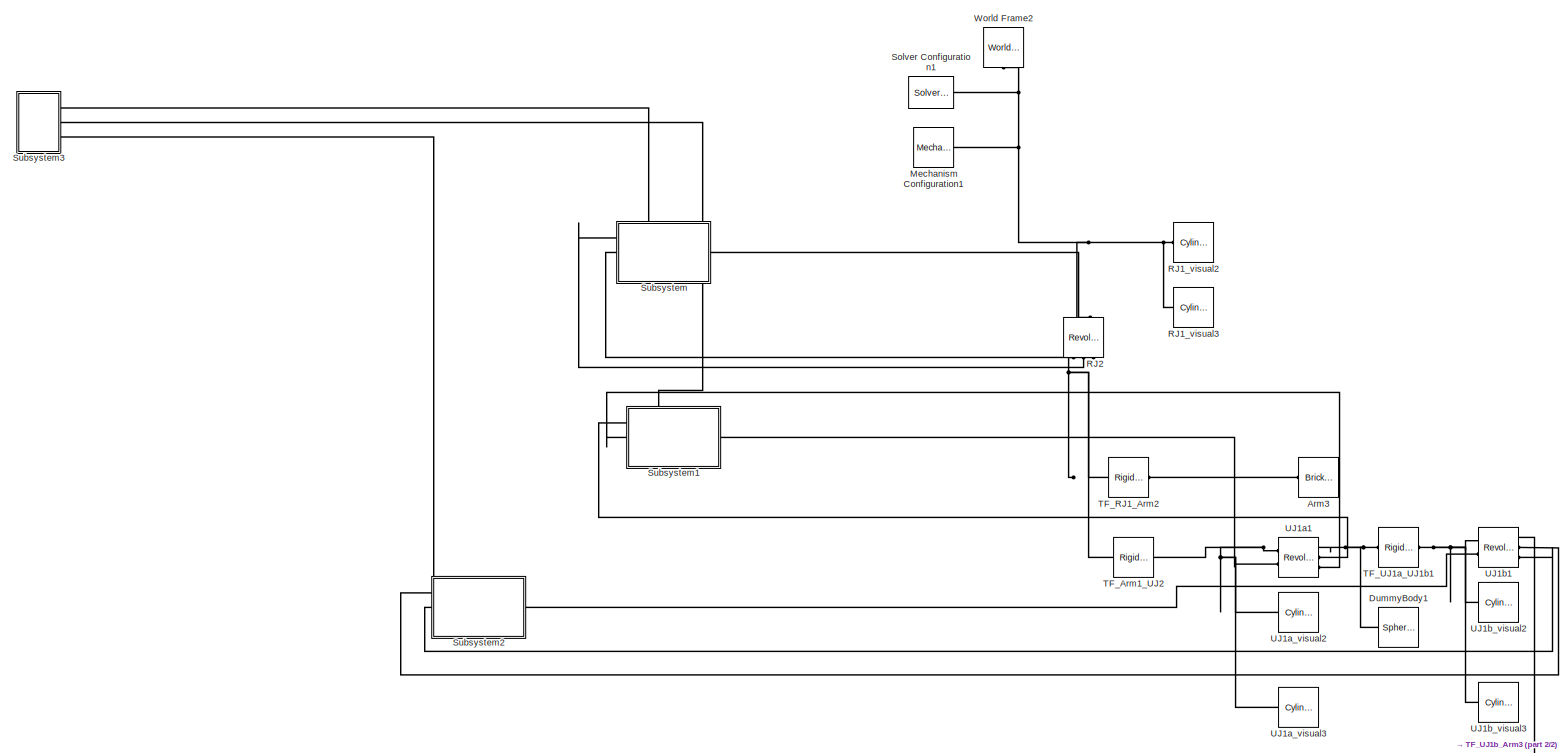
[diagram: root canvas - part 1/2, most of the canvas]
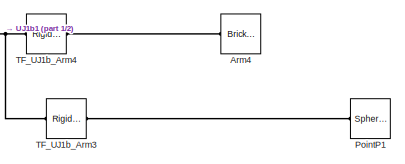
[diagram: root canvas - part 2/2, bottom right region]
MODEL slx_aede37786c12
KIND model
CONFIG AbsTol = auto
CONFIG EnableMultiTasking = off
CONFIG FixedStep = auto
CONFIG MaxStep = 1e-3
CONFIG MinStep = auto
CONFIG RelTol = 1e-3
CONFIG SampleTimeConstraint = Unconstrained
CONFIG SolverName = VariableStepAuto
CONFIG StartTime = 0.0
CONFIG StopTime = 10
WORKSPACE source: MATLAB code (in-file)
WORKSPACE g = 9.81
WORKSPACE m1 = 8
WORKSPACE L1 = 0.2
WORKSPACE w1 = 0.04
WORKSPACE m2 = 12
WORKSPACE L2 = 0.6
WORKSPACE w2 = 0.03
WORKSPACE theta1_init = 0*pi/180  (= 0)
WORKSPACE thetaDot1_init = 0
WORKSPACE theta2_init = 0*pi/180  (= 0)
WORKSPACE thetaDot2_init = 0
WORKSPACE theta3_init = 70*pi/180  (= 1.2217304764)
WORKSPACE thetaDot3_init = 0
WORKSPACE I_max = 16
WORKSPACE Km = 1
WORKSPACE Jm = 0.002
WORKSPACE g_ratio = 50
BLOCK [Reference] Arm3  REF=sm_lib/Body Elements/Brick Solid
  Ports = [0, 0, 0, 0, 0, 0, 1]
  SourceBlock = sm_lib/Body Elements/Brick Solid
  SourceProductBaseCode = MS
  SourceType = Brick Solid
BLOCK [Reference] Arm4  REF=sm_lib/Body Elements/Brick Solid
  Ports = [0, 0, 0, 0, 0, 0, 1]
  SourceBlock = sm_lib/Body Elements/Brick Solid
  SourceProductBaseCode = MS
  SourceType = Brick Solid
BLOCK [Reference] DummyBody1  REF=sm_lib/Body Elements/Spherical Solid
  Ports = [0, 0, 0, 0, 0, 0, 1]
  SourceBlock = sm_lib/Body Elements/Spherical Solid
  SourceProductBaseCode = MS
  SourceType = Spherical Solid
BLOCK [Reference] Mechanism Configuration1  REF=sm_lib/Utilities/Mechanism
Configuration
  Ports = [0, 0, 0, 0, 0, 0, 1]
  SourceBlock = sm_lib/Utilities/Mechanism\nConfiguration
  SourceProductBaseCode = MS
  SourceType = Mechanism\nConfiguration
BLOCK [Reference] PointP1  REF=sm_lib/Body Elements/Spherical Solid
  Ports = [0, 0, 0, 0, 0, 0, 1]
  SourceBlock = sm_lib/Body Elements/Spherical Solid
  SourceProductBaseCode = MS
  SourceType = Spherical Solid
BLOCK [Reference] RJ1_visual2  REF=sm_lib/Body Elements/Cylindrical Solid
  Ports = [0, 0, 0, 0, 0, 0, 1]
  SourceBlock = sm_lib/Body Elements/Cylindrical Solid
  SourceProductBaseCode = MS
  SourceType = Cylindrical Solid
BLOCK [Reference] RJ1_visual3  REF=sm_lib/Body Elements/Cylindrical Solid
  Ports = [0, 0, 0, 0, 0, 0, 1]
  SourceBlock = sm_lib/Body Elements/Cylindrical Solid
  SourceProductBaseCode = MS
  SourceType = Cylindrical Solid
BLOCK [Reference] RJ2  REF=sm_lib/Joints/Revolute Joint
  NameLocation = right
  Ports = [0, 0, 0, 0, 0, 2, 3]
  SourceBlock = sm_lib/Joints/Revolute Joint
  SourceProductBaseCode = MS
  SourceType = Revolute Joint
BLOCK [Reference] Solver Configuration1  REF=nesl_utility/Solver
Configuration
  Ports = [0, 0, 0, 0, 0, 0, 1]
  SourceBlock = nesl_utility/Solver\nConfiguration
  SourceProductBaseCode = SS,PW,VE
  SourceType = Solver\nConfiguration
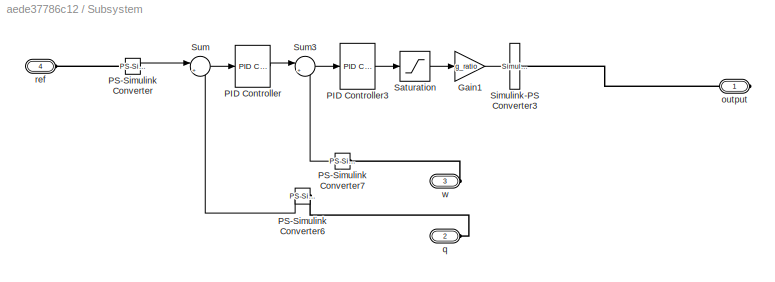
BLOCK [SubSystem] Subsystem
  PortSchema = {"entries":[{"content":{"sides":[{"content":{"connectorIds":["LConn1","LConn2"]},"type":"ConnectorPlacement.EquallySpacedRectSide","uuid":"88fb2923-d567-49e7-965d-54b8b92ddc6d"},{"content":{"connectorIds":["RConn1"],"side":"RIGHT"},"type":"ConnectorPlacement.EquallySpacedRectSide","uuid":"46ea93fe-e994-4ece-a41c-2bcb9003d689"},{"content":{"connectorIds":["LConn3"],"side":"TOP"},"type":"ConnectorPl...<+262ch>  <repeated x3 — deduplicated; at blocks: Subsystem, Subsystem1, Subsystem2>
  Ports = [0, 0, 0, 0, 0, 3, 1]
  RequestExecContextInheritance = off
BLOCK [Gain] Subsystem/Gain1
  Gain = g_ratio
BLOCK [Reference] Subsystem/PID Controller  REF=slpidlib/PID Controller
  Ports = [1, 1]
  SourceBlock = slpidlib/PID Controller
  SourceProductBaseCode = SL
  SourceType = PID 1dof
BLOCK [Reference] Subsystem/PID Controller3  REF=slpidlib/PID Controller
  Ports = [1, 1]
  SourceBlock = slpidlib/PID Controller
  SourceProductBaseCode = SL
  SourceType = PID 1dof
BLOCK [Reference] Subsystem/PS-Simulink Converter  REF=nesl_utility/PS-Simulink
Converter
  Ports = [0, 1, 0, 0, 0, 1]
  SourceBlock = nesl_utility/PS-Simulink\nConverter
  SourceProductBaseCode = SS,PW,VE
  SourceType = PS-Simulink\nConverter
BLOCK [Reference] Subsystem/PS-Simulink Converter6  REF=nesl_utility/PS-Simulink
Converter
  NameLocation = top
  Ports = [0, 1, 0, 0, 0, 1]
  SourceBlock = nesl_utility/PS-Simulink\nConverter
  SourceProductBaseCode = SS,PW,VE
  SourceType = PS-Simulink\nConverter
BLOCK [Reference] Subsystem/PS-Simulink Converter7  REF=nesl_utility/PS-Simulink
Converter
  NameLocation = top
  Ports = [0, 1, 0, 0, 0, 1]
  SourceBlock = nesl_utility/PS-Simulink\nConverter
  SourceProductBaseCode = SS,PW,VE
  SourceType = PS-Simulink\nConverter
BLOCK [Saturate] Subsystem/Saturation
  LowerLimit = -I_max*Km
  UpperLimit = I_max*Km
  ZeroCross = off
BLOCK [Reference] Subsystem/Simulink-PS Converter3  REF=nesl_utility/Simulink-PS
Converter
  Ports = [1, 0, 0, 0, 0, 0, 1]
  SourceBlock = nesl_utility/Simulink-PS\nConverter
  SourceProductBaseCode = SS,PW,VE
  SourceType = Simulink-PS\nConverter
BLOCK [Sum] Subsystem/Sum
  Inputs = |+-
  Ports = [2, 1]
BLOCK [Sum] Subsystem/Sum3
  Inputs = |+-
  Ports = [2, 1]
BLOCK [PMIOPort] Subsystem/output
  Side = Right
BLOCK [PMIOPort] Subsystem/q
  Port = 2
  Side = Left
BLOCK [PMIOPort] Subsystem/ref
  Port = 4
  Side = Left
BLOCK [PMIOPort] Subsystem/w
  Port = 3
  Side = Left
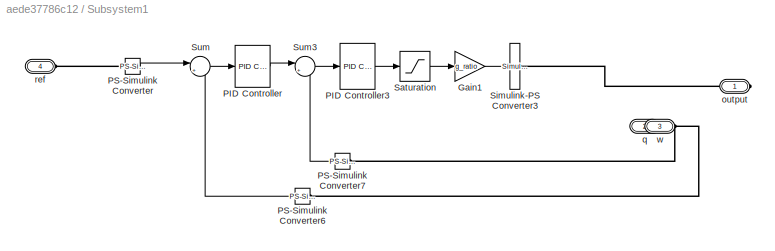
BLOCK [SubSystem] Subsystem1
  Ports = [0, 0, 0, 0, 0, 3, 1]
  RequestExecContextInheritance = off
BLOCK [Gain] Subsystem1/Gain1
  Gain = g_ratio
BLOCK [Reference] Subsystem1/PID Controller  REF=slpidlib/PID Controller
  Ports = [1, 1]
  SourceBlock = slpidlib/PID Controller
  SourceProductBaseCode = SL
  SourceType = PID 1dof
BLOCK [Reference] Subsystem1/PID Controller3  REF=slpidlib/PID Controller
  Ports = [1, 1]
  SourceBlock = slpidlib/PID Controller
  SourceProductBaseCode = SL
  SourceType = PID 1dof
BLOCK [Reference] Subsystem1/PS-Simulink Converter  REF=nesl_utility/PS-Simulink
Converter
  Ports = [0, 1, 0, 0, 0, 1]
  SourceBlock = nesl_utility/PS-Simulink\nConverter
  SourceProductBaseCode = SS,PW,VE
  SourceType = PS-Simulink\nConverter
BLOCK [Reference] Subsystem1/PS-Simulink Converter6  REF=nesl_utility/PS-Simulink
Converter
  NameLocation = top
  Ports = [0, 1, 0, 0, 0, 1]
  SourceBlock = nesl_utility/PS-Simulink\nConverter
  SourceProductBaseCode = SS,PW,VE
  SourceType = PS-Simulink\nConverter
BLOCK [Reference] Subsystem1/PS-Simulink Converter7  REF=nesl_utility/PS-Simulink
Converter
  NameLocation = top
  Ports = [0, 1, 0, 0, 0, 1]
  SourceBlock = nesl_utility/PS-Simulink\nConverter
  SourceProductBaseCode = SS,PW,VE
  SourceType = PS-Simulink\nConverter
BLOCK [Saturate] Subsystem1/Saturation
  LowerLimit = -I_max*Km
  UpperLimit = I_max*Km
  ZeroCross = off
BLOCK [Reference] Subsystem1/Simulink-PS Converter3  REF=nesl_utility/Simulink-PS
Converter
  Ports = [1, 0, 0, 0, 0, 0, 1]
  SourceBlock = nesl_utility/Simulink-PS\nConverter
  SourceProductBaseCode = SS,PW,VE
  SourceType = Simulink-PS\nConverter
BLOCK [Sum] Subsystem1/Sum
  Inputs = |+-
  Ports = [2, 1]
BLOCK [Sum] Subsystem1/Sum3
  Inputs = |+-
  Ports = [2, 1]
BLOCK [PMIOPort] Subsystem1/output
  Side = Right
BLOCK [PMIOPort] Subsystem1/q
  Port = 2
  Side = Left
BLOCK [PMIOPort] Subsystem1/ref
  Port = 4
  Side = Left
BLOCK [PMIOPort] Subsystem1/w
  Port = 3
  Side = Left
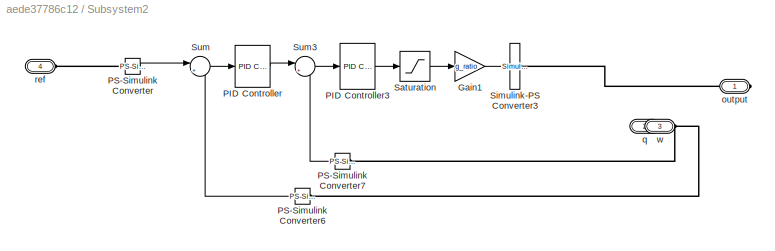
BLOCK [SubSystem] Subsystem2
  Ports = [0, 0, 0, 0, 0, 3, 1]
  RequestExecContextInheritance = off
BLOCK [Gain] Subsystem2/Gain1
  Gain = g_ratio
BLOCK [Reference] Subsystem2/PID Controller  REF=slpidlib/PID Controller
  Ports = [1, 1]
  SourceBlock = slpidlib/PID Controller
  SourceProductBaseCode = SL
  SourceType = PID 1dof
BLOCK [Reference] Subsystem2/PID Controller3  REF=slpidlib/PID Controller
  Ports = [1, 1]
  SourceBlock = slpidlib/PID Controller
  SourceProductBaseCode = SL
  SourceType = PID 1dof
BLOCK [Reference] Subsystem2/PS-Simulink Converter  REF=nesl_utility/PS-Simulink
Converter
  Ports = [0, 1, 0, 0, 0, 1]
  SourceBlock = nesl_utility/PS-Simulink\nConverter
  SourceProductBaseCode = SS,PW,VE
  SourceType = PS-Simulink\nConverter
BLOCK [Reference] Subsystem2/PS-Simulink Converter6  REF=nesl_utility/PS-Simulink
Converter
  NameLocation = top
  Ports = [0, 1, 0, 0, 0, 1]
  SourceBlock = nesl_utility/PS-Simulink\nConverter
  SourceProductBaseCode = SS,PW,VE
  SourceType = PS-Simulink\nConverter
BLOCK [Reference] Subsystem2/PS-Simulink Converter7  REF=nesl_utility/PS-Simulink
Converter
  NameLocation = top
  Ports = [0, 1, 0, 0, 0, 1]
  SourceBlock = nesl_utility/PS-Simulink\nConverter
  SourceProductBaseCode = SS,PW,VE
  SourceType = PS-Simulink\nConverter
BLOCK [Saturate] Subsystem2/Saturation
  LowerLimit = -I_max*Km
  UpperLimit = I_max*Km
  ZeroCross = off
BLOCK [Reference] Subsystem2/Simulink-PS Converter3  REF=nesl_utility/Simulink-PS
Converter
  Ports = [1, 0, 0, 0, 0, 0, 1]
  SourceBlock = nesl_utility/Simulink-PS\nConverter
  SourceProductBaseCode = SS,PW,VE
  SourceType = Simulink-PS\nConverter
BLOCK [Sum] Subsystem2/Sum
  Inputs = |+-
  Ports = [2, 1]
BLOCK [Sum] Subsystem2/Sum3
  Inputs = |+-
  Ports = [2, 1]
BLOCK [PMIOPort] Subsystem2/output
  Side = Right
BLOCK [PMIOPort] Subsystem2/q
  Port = 2
  Side = Left
BLOCK [PMIOPort] Subsystem2/ref
  Port = 4
  Side = Left
BLOCK [PMIOPort] Subsystem2/w
  Port = 3
  Side = Left
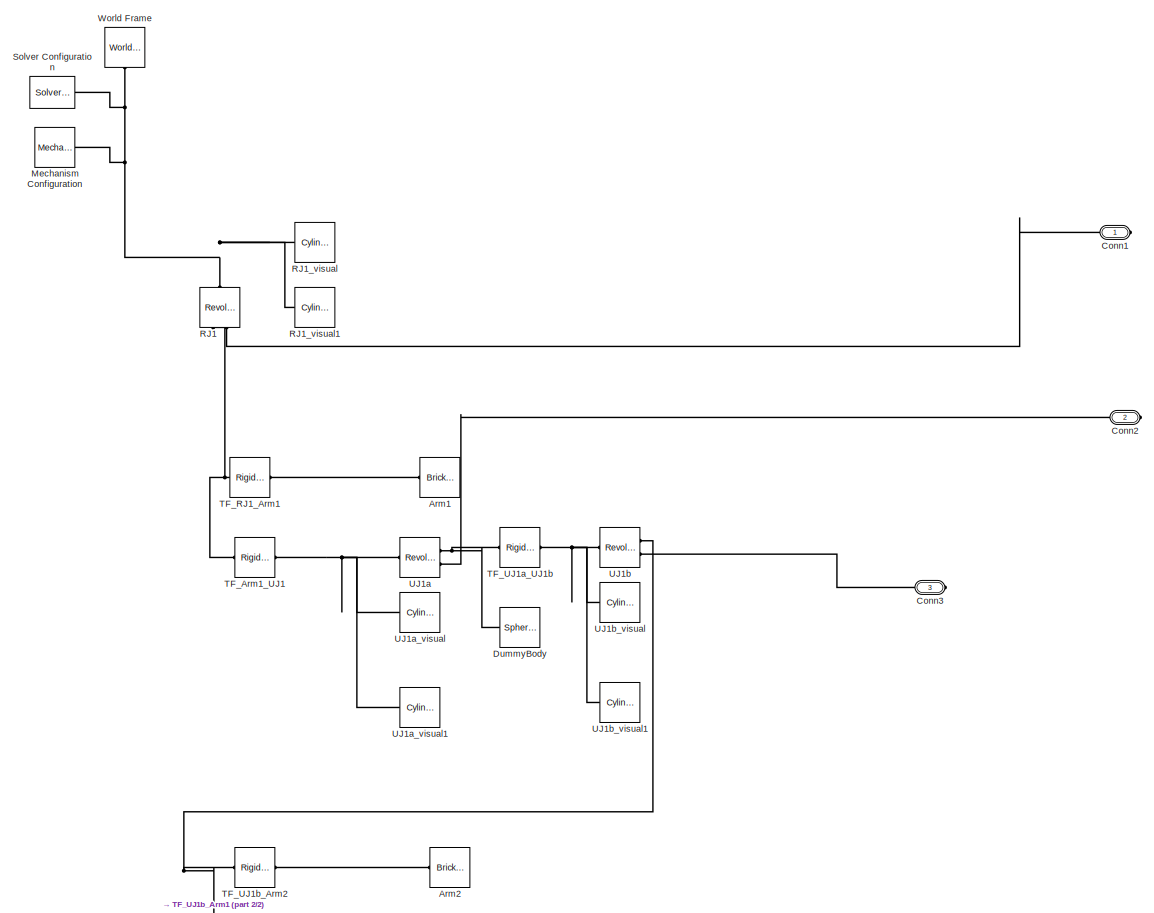
[diagram: Subsystem3 - part 1/2, full width, middle band]
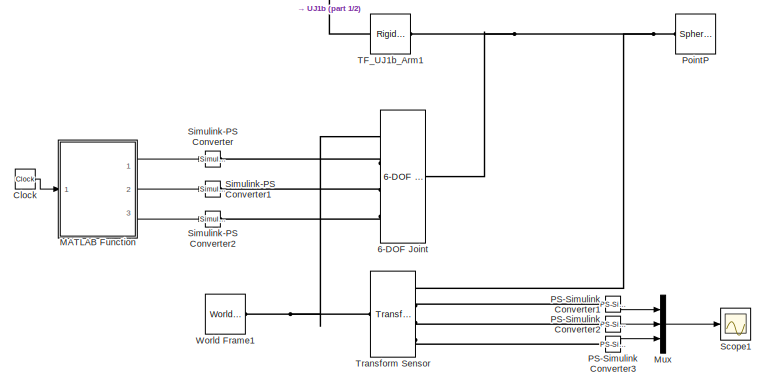
[diagram: Subsystem3 - part 2/2, bottom left region]
BLOCK [SubSystem] Subsystem3
  Ports = [0, 0, 0, 0, 0, 0, 3]
  RequestExecContextInheritance = off
BLOCK [Reference] Subsystem3/6-DOF Joint  REF=sm_lib/Joints/6-DOF Joint
  Ports = [0, 0, 0, 0, 0, 4, 1]
  SourceBlock = sm_lib/Joints/6-DOF Joint
  SourceProductBaseCode = MS
  SourceType = 6-DOF Joint
BLOCK [Reference] Subsystem3/Arm1  REF=sm_lib/Body Elements/Brick Solid
  Ports = [0, 0, 0, 0, 0, 0, 1]
  SourceBlock = sm_lib/Body Elements/Brick Solid
  SourceProductBaseCode = MS
  SourceType = Brick Solid
BLOCK [Reference] Subsystem3/Arm2  REF=sm_lib/Body Elements/Brick Solid
  Ports = [0, 0, 0, 0, 0, 0, 1]
  SourceBlock = sm_lib/Body Elements/Brick Solid
  SourceProductBaseCode = MS
  SourceType = Brick Solid
BLOCK [Clock] Subsystem3/Clock
BLOCK [PMIOPort] Subsystem3/Conn1
  Side = Right
BLOCK [PMIOPort] Subsystem3/Conn2
  Port = 2
  Side = Right
BLOCK [PMIOPort] Subsystem3/Conn3
  Port = 3
  Side = Right
BLOCK [Reference] Subsystem3/DummyBody  REF=sm_lib/Body Elements/Spherical Solid
  Ports = [0, 0, 0, 0, 0, 0, 1]
  SourceBlock = sm_lib/Body Elements/Spherical Solid
  SourceProductBaseCode = MS
  SourceType = Spherical Solid
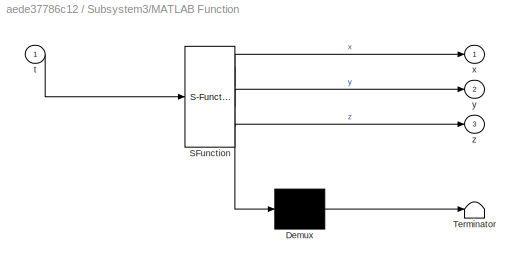
BLOCK [SubSystem] Subsystem3/MATLAB Function
  ErrorFcn = Stateflow.Translate.translate
  PermitHierarchicalResolution = ExplicitOnly
  Ports = [1, 3]
  RequestExecContextInheritance = off
  SFBlockType = MATLAB Function
  TreatAsAtomicUnit = on
BLOCK [Demux] Subsystem3/MATLAB Function/ Demux 
  Outputs = 1
  Ports = [1, 1]
BLOCK [S-Function] Subsystem3/MATLAB Function/ SFunction 
  EnableBusSupport = on
  FunctionName = sf_sfun
  PortCounts = [1 4]
  Ports = [1, 4]
  SFcnIsStateOwnerBlock = off
  SFunctionDeploymentMode = off
  Tag = Stateflow S-Function 2
BLOCK [Terminator] Subsystem3/MATLAB Function/ Terminator 
BLOCK [Inport] Subsystem3/MATLAB Function/t
BLOCK [Outport] Subsystem3/MATLAB Function/x
  VectorParamsAs1DForOutWhenUnconnected = off
BLOCK [Outport] Subsystem3/MATLAB Function/y
  Port = 2
  VectorParamsAs1DForOutWhenUnconnected = off
BLOCK [Outport] Subsystem3/MATLAB Function/z
  Port = 3
  VectorParamsAs1DForOutWhenUnconnected = off
BLOCK [Reference] Subsystem3/Mechanism Configuration  REF=sm_lib/Utilities/Mechanism
Configuration
  Ports = [0, 0, 0, 0, 0, 0, 1]
  SourceBlock = sm_lib/Utilities/Mechanism\nConfiguration
  SourceProductBaseCode = MS
  SourceType = Mechanism\nConfiguration
BLOCK [Mux] Subsystem3/Mux
  DisplayOption = bar
  Inputs = 3
  Ports = [3, 1]
BLOCK [Reference] Subsystem3/PS-Simulink Converter1  REF=nesl_utility/PS-Simulink
Converter
  Ports = [0, 1, 0, 0, 0, 1]
  SourceBlock = nesl_utility/PS-Simulink\nConverter
  SourceProductBaseCode = SS,PW,VE
  SourceType = PS-Simulink\nConverter
BLOCK [Reference] Subsystem3/PS-Simulink Converter2  REF=nesl_utility/PS-Simulink
Converter
  Ports = [0, 1, 0, 0, 0, 1]
  SourceBlock = nesl_utility/PS-Simulink\nConverter
  SourceProductBaseCode = SS,PW,VE
  SourceType = PS-Simulink\nConverter
BLOCK [Reference] Subsystem3/PS-Simulink Converter3  REF=nesl_utility/PS-Simulink
Converter
  Ports = [0, 1, 0, 0, 0, 1]
  SourceBlock = nesl_utility/PS-Simulink\nConverter
  SourceProductBaseCode = SS,PW,VE
  SourceType = PS-Simulink\nConverter
BLOCK [Reference] Subsystem3/PointP  REF=sm_lib/Body Elements/Spherical Solid
  Ports = [0, 0, 0, 0, 0, 0, 1]
  SourceBlock = sm_lib/Body Elements/Spherical Solid
  SourceProductBaseCode = MS
  SourceType = Spherical Solid
BLOCK [Reference] Subsystem3/RJ1  REF=sm_lib/Joints/Revolute Joint
  NameLocation = right
  Ports = [0, 0, 0, 0, 0, 1, 2]
  SourceBlock = sm_lib/Joints/Revolute Joint
  SourceProductBaseCode = MS
  SourceType = Revolute Joint
BLOCK [Reference] Subsystem3/RJ1_visual  REF=sm_lib/Body Elements/Cylindrical Solid
  Ports = [0, 0, 0, 0, 0, 0, 1]
  SourceBlock = sm_lib/Body Elements/Cylindrical Solid
  SourceProductBaseCode = MS
  SourceType = Cylindrical Solid
BLOCK [Reference] Subsystem3/RJ1_visual1  REF=sm_lib/Body Elements/Cylindrical Solid
  Ports = [0, 0, 0, 0, 0, 0, 1]
  SourceBlock = sm_lib/Body Elements/Cylindrical Solid
  SourceProductBaseCode = MS
  SourceType = Cylindrical Solid
BLOCK [Scope] Subsystem3/Scope1
  Floating = off
  NumInputPorts = 1
  Ports = [1]
  ScopeSpecificationString = Simulink.scopes.TimeScopeBlockCfg('CurrentConfiguration', extmgr.ConfigurationSet(extmgr.Configuration('Core','General UI',true),extmgr.Configuration('Core','Source UI',true),extmgr.Configuration('Sources','WiredSimulink',true,'DataLoggingVariableName','ScopeData1'),extmgr.Configuration('Visuals','Time Domain',true,'SerializedDisplays',{struct('MinYLimReal','-0.34312','MaxYLimReal','0.53812','YLab...<+1464ch>
BLOCK [Reference] Subsystem3/Simulink-PS Converter  REF=nesl_utility/Simulink-PS
Converter
  Ports = [1, 0, 0, 0, 0, 0, 1]
  SourceBlock = nesl_utility/Simulink-PS\nConverter
  SourceProductBaseCode = SS,PW,VE
  SourceType = Simulink-PS\nConverter
BLOCK [Reference] Subsystem3/Simulink-PS Converter1  REF=nesl_utility/Simulink-PS
Converter
  Ports = [1, 0, 0, 0, 0, 0, 1]
  SourceBlock = nesl_utility/Simulink-PS\nConverter
  SourceProductBaseCode = SS,PW,VE
  SourceType = Simulink-PS\nConverter
BLOCK [Reference] Subsystem3/Simulink-PS Converter2  REF=nesl_utility/Simulink-PS
Converter
  Ports = [1, 0, 0, 0, 0, 0, 1]
  SourceBlock = nesl_utility/Simulink-PS\nConverter
  SourceProductBaseCode = SS,PW,VE
  SourceType = Simulink-PS\nConverter
BLOCK [Reference] Subsystem3/Solver Configuration  REF=nesl_utility/Solver
Configuration
  Ports = [0, 0, 0, 0, 0, 0, 1]
  SourceBlock = nesl_utility/Solver\nConfiguration
  SourceProductBaseCode = SS,PW,VE
  SourceType = Solver\nConfiguration
BLOCK [Reference] Subsystem3/TF_Arm1_UJ1  REF=sm_lib/Frames and
Transforms/Rigid
Transform
  Ports = [0, 0, 0, 0, 0, 1, 1]
  SourceBlock = sm_lib/Frames and\nTransforms/Rigid\nTransform
  SourceProductBaseCode = MS
  SourceType = Rigid\nTransform
BLOCK [Reference] Subsystem3/TF_RJ1_Arm1  REF=sm_lib/Frames and
Transforms/Rigid
Transform
  Ports = [0, 0, 0, 0, 0, 1, 1]
  SourceBlock = sm_lib/Frames and\nTransforms/Rigid\nTransform
  SourceProductBaseCode = MS
  SourceType = Rigid\nTransform
BLOCK [Reference] Subsystem3/TF_UJ1a_UJ1b  REF=sm_lib/Frames and
Transforms/Rigid
Transform
  Ports = [0, 0, 0, 0, 0, 1, 1]
  SourceBlock = sm_lib/Frames and\nTransforms/Rigid\nTransform
  SourceProductBaseCode = MS
  SourceType = Rigid\nTransform
BLOCK [Reference] Subsystem3/TF_UJ1b_Arm1  REF=sm_lib/Frames and
Transforms/Rigid
Transform
  Ports = [0, 0, 0, 0, 0, 1, 1]
  SourceBlock = sm_lib/Frames and\nTransforms/Rigid\nTransform
  SourceProductBaseCode = MS
  SourceType = Rigid\nTransform
BLOCK [Reference] Subsystem3/TF_UJ1b_Arm2  REF=sm_lib/Frames and
Transforms/Rigid
Transform
  Ports = [0, 0, 0, 0, 0, 1, 1]
  SourceBlock = sm_lib/Frames and\nTransforms/Rigid\nTransform
  SourceProductBaseCode = MS
  SourceType = Rigid\nTransform
BLOCK [Reference] Subsystem3/Transform Sensor  REF=sm_lib/Frames and
Transforms/Transform
Sensor
  Ports = [0, 0, 0, 0, 0, 1, 4]
  SourceBlock = sm_lib/Frames and\nTransforms/Transform\nSensor
  SourceProductBaseCode = MS
  SourceType = Transform\nSensor
BLOCK [Reference] Subsystem3/UJ1a  REF=sm_lib/Joints/Revolute Joint
  NameLocation = top
  Ports = [0, 0, 0, 0, 0, 1, 2]
  SourceBlock = sm_lib/Joints/Revolute Joint
  SourceProductBaseCode = MS
  SourceType = Revolute Joint
BLOCK [Reference] Subsystem3/UJ1a_visual  REF=sm_lib/Body Elements/Cylindrical Solid
  Ports = [0, 0, 0, 0, 0, 0, 1]
  SourceBlock = sm_lib/Body Elements/Cylindrical Solid
  SourceProductBaseCode = MS
  SourceType = Cylindrical Solid
BLOCK [Reference] Subsystem3/UJ1a_visual1  REF=sm_lib/Body Elements/Cylindrical Solid
  Ports = [0, 0, 0, 0, 0, 0, 1]
  SourceBlock = sm_lib/Body Elements/Cylindrical Solid
  SourceProductBaseCode = MS
  SourceType = Cylindrical Solid
BLOCK [Reference] Subsystem3/UJ1b  REF=sm_lib/Joints/Revolute Joint
  NameLocation = top
  Ports = [0, 0, 0, 0, 0, 1, 2]
  SourceBlock = sm_lib/Joints/Revolute Joint
  SourceProductBaseCode = MS
  SourceType = Revolute Joint
BLOCK [Reference] Subsystem3/UJ1b_visual  REF=sm_lib/Body Elements/Cylindrical Solid
  Ports = [0, 0, 0, 0, 0, 0, 1]
  SourceBlock = sm_lib/Body Elements/Cylindrical Solid
  SourceProductBaseCode = MS
  SourceType = Cylindrical Solid
BLOCK [Reference] Subsystem3/UJ1b_visual1  REF=sm_lib/Body Elements/Cylindrical Solid
  Ports = [0, 0, 0, 0, 0, 0, 1]
  SourceBlock = sm_lib/Body Elements/Cylindrical Solid
  SourceProductBaseCode = MS
  SourceType = Cylindrical Solid
BLOCK [Reference] Subsystem3/World Frame  REF=sm_lib/Frames and
Transforms/World Frame
  NameLocation = right
  Ports = [0, 0, 0, 0, 0, 0, 1]
  SourceBlock = sm_lib/Frames and\nTransforms/World Frame
  SourceProductBaseCode = MS
  SourceType = World Frame
BLOCK [Reference] Subsystem3/World Frame1  REF=sm_lib/Frames and
Transforms/World Frame
  Ports = [0, 0, 0, 0, 0, 0, 1]
  SourceBlock = sm_lib/Frames and\nTransforms/World Frame
  SourceProductBaseCode = MS
  SourceType = World Frame
BLOCK [Reference] TF_Arm1_UJ2  REF=sm_lib/Frames and
Transforms/Rigid
Transform
  Ports = [0, 0, 0, 0, 0, 1, 1]
  SourceBlock = sm_lib/Frames and\nTransforms/Rigid\nTransform
  SourceProductBaseCode = MS
  SourceType = Rigid\nTransform
BLOCK [Reference] TF_RJ1_Arm2  REF=sm_lib/Frames and
Transforms/Rigid
Transform
  Ports = [0, 0, 0, 0, 0, 1, 1]
  SourceBlock = sm_lib/Frames and\nTransforms/Rigid\nTransform
  SourceProductBaseCode = MS
  SourceType = Rigid\nTransform
BLOCK [Reference] TF_UJ1a_UJ1b1  REF=sm_lib/Frames and
Transforms/Rigid
Transform
  Ports = [0, 0, 0, 0, 0, 1, 1]
  SourceBlock = sm_lib/Frames and\nTransforms/Rigid\nTransform
  SourceProductBaseCode = MS
  SourceType = Rigid\nTransform
BLOCK [Reference] TF_UJ1b_Arm3  REF=sm_lib/Frames and
Transforms/Rigid
Transform
  Ports = [0, 0, 0, 0, 0, 1, 1]
  SourceBlock = sm_lib/Frames and\nTransforms/Rigid\nTransform
  SourceProductBaseCode = MS
  SourceType = Rigid\nTransform
BLOCK [Reference] TF_UJ1b_Arm4  REF=sm_lib/Frames and
Transforms/Rigid
Transform
  Ports = [0, 0, 0, 0, 0, 1, 1]
  SourceBlock = sm_lib/Frames and\nTransforms/Rigid\nTransform
  SourceProductBaseCode = MS
  SourceType = Rigid\nTransform
BLOCK [Reference] UJ1a1  REF=sm_lib/Joints/Revolute Joint
  NameLocation = top
  Ports = [0, 0, 0, 0, 0, 2, 3]
  SourceBlock = sm_lib/Joints/Revolute Joint
  SourceProductBaseCode = MS
  SourceType = Revolute Joint
BLOCK [Reference] UJ1a_visual2  REF=sm_lib/Body Elements/Cylindrical Solid
  Ports = [0, 0, 0, 0, 0, 0, 1]
  SourceBlock = sm_lib/Body Elements/Cylindrical Solid
  SourceProductBaseCode = MS
  SourceType = Cylindrical Solid
BLOCK [Reference] UJ1a_visual3  REF=sm_lib/Body Elements/Cylindrical Solid
  Ports = [0, 0, 0, 0, 0, 0, 1]
  SourceBlock = sm_lib/Body Elements/Cylindrical Solid
  SourceProductBaseCode = MS
  SourceType = Cylindrical Solid
BLOCK [Reference] UJ1b1  REF=sm_lib/Joints/Revolute Joint
  NameLocation = top
  Ports = [0, 0, 0, 0, 0, 2, 3]
  SourceBlock = sm_lib/Joints/Revolute Joint
  SourceProductBaseCode = MS
  SourceType = Revolute Joint
BLOCK [Reference] UJ1b_visual2  REF=sm_lib/Body Elements/Cylindrical Solid
  Ports = [0, 0, 0, 0, 0, 0, 1]
  SourceBlock = sm_lib/Body Elements/Cylindrical Solid
  SourceProductBaseCode = MS
  SourceType = Cylindrical Solid
BLOCK [Reference] UJ1b_visual3  REF=sm_lib/Body Elements/Cylindrical Solid
  Ports = [0, 0, 0, 0, 0, 0, 1]
  SourceBlock = sm_lib/Body Elements/Cylindrical Solid
  SourceProductBaseCode = MS
  SourceType = Cylindrical Solid
BLOCK [Reference] World Frame2  REF=sm_lib/Frames and
Transforms/World Frame
  NameLocation = right
  Ports = [0, 0, 0, 0, 0, 0, 1]
  SourceBlock = sm_lib/Frames and\nTransforms/World Frame
  SourceProductBaseCode = MS
  SourceType = World Frame
LINE Subsystem/Gain1:1 -> Subsystem/Simulink-PS Converter3:1
LINE Subsystem/PID Controller3:1 -> Subsystem/Saturation:1
LINE Subsystem/PID Controller:1 -> Subsystem/Sum3:1
LINE Subsystem/PS-Simulink Converter6:1 -> Subsystem/Sum:2
LINE Subsystem/PS-Simulink Converter7:1 -> Subsystem/Sum3:2
LINE Subsystem/PS-Simulink Converter:1 -> Subsystem/Sum:1
LINE Subsystem/Saturation:1 -> Subsystem/Gain1:1
LINE Subsystem/Sum3:1 -> Subsystem/PID Controller3:1
LINE Subsystem/Sum:1 -> Subsystem/PID Controller:1
LINE Subsystem1/Gain1:1 -> Subsystem1/Simulink-PS Converter3:1
LINE Subsystem1/PID Controller3:1 -> Subsystem1/Saturation:1
LINE Subsystem1/PID Controller:1 -> Subsystem1/Sum3:1
LINE Subsystem1/PS-Simulink Converter6:1 -> Subsystem1/Sum:2
LINE Subsystem1/PS-Simulink Converter7:1 -> Subsystem1/Sum3:2
LINE Subsystem1/PS-Simulink Converter:1 -> Subsystem1/Sum:1
LINE Subsystem1/Saturation:1 -> Subsystem1/Gain1:1
LINE Subsystem1/Sum3:1 -> Subsystem1/PID Controller3:1
LINE Subsystem1/Sum:1 -> Subsystem1/PID Controller:1
LINE Subsystem2/Gain1:1 -> Subsystem2/Simulink-PS Converter3:1
LINE Subsystem2/PID Controller3:1 -> Subsystem2/Saturation:1
LINE Subsystem2/PID Controller:1 -> Subsystem2/Sum3:1
LINE Subsystem2/PS-Simulink Converter6:1 -> Subsystem2/Sum:2
LINE Subsystem2/PS-Simulink Converter7:1 -> Subsystem2/Sum3:2
LINE Subsystem2/PS-Simulink Converter:1 -> Subsystem2/Sum:1
LINE Subsystem2/Saturation:1 -> Subsystem2/Gain1:1
LINE Subsystem2/Sum3:1 -> Subsystem2/PID Controller3:1
LINE Subsystem2/Sum:1 -> Subsystem2/PID Controller:1
LINE Subsystem3/Clock:1 -> Subsystem3/MATLAB Function:1
LINE Subsystem3/MATLAB Function:1 -> Subsystem3/Simulink-PS Converter:1
LINE Subsystem3/MATLAB Function:2 -> Subsystem3/Simulink-PS Converter1:1
LINE Subsystem3/MATLAB Function:3 -> Subsystem3/Simulink-PS Converter2:1
LINE Subsystem3/Mux:1 -> Subsystem3/Scope1:1
LINE Subsystem3/PS-Simulink Converter1:1 -> Subsystem3/Mux:1
LINE Subsystem3/PS-Simulink Converter2:1 -> Subsystem3/Mux:2
LINE Subsystem3/PS-Simulink Converter3:1 -> Subsystem3/Mux:3
PLINE Arm3:RConn1 -- TF_RJ1_Arm2:RConn1
PLINE Arm4:RConn1 -- TF_UJ1b_Arm4:RConn1
PNET net1: DummyBody1:RConn1 -- TF_UJ1a_UJ1b1:LConn1 -- UJ1a1:RConn1
PNET net2: Mechanism Configuration1:RConn1 -- RJ1_visual2:RConn1 -- RJ1_visual3:RConn1 -- RJ2:LConn1 -- Solver Configuration1:RConn1 -- World Frame2:RConn1
PLINE PointP1:RConn1 -- TF_UJ1b_Arm3:RConn1
PLINE RJ2:LConn2 -- Subsystem:RConn1
PNET net3: RJ2:RConn1 -- TF_Arm1_UJ2:LConn1 -- TF_RJ1_Arm2:LConn1
PLINE RJ2:RConn2 -- Subsystem:LConn1
PLINE RJ2:RConn3 -- Subsystem:LConn2
PLINE Subsystem/PS-Simulink Converter6:LConn1 -- Subsystem/q:RConn1
PLINE Subsystem/PS-Simulink Converter7:LConn1 -- Subsystem/w:RConn1
PLINE Subsystem/PS-Simulink Converter:LConn1 -- Subsystem/ref:RConn1
PLINE Subsystem/Simulink-PS Converter3:RConn1 -- Subsystem/output:RConn1
PLINE Subsystem1/PS-Simulink Converter6:LConn1 -- Subsystem1/q:RConn1
PLINE Subsystem1/PS-Simulink Converter7:LConn1 -- Subsystem1/w:RConn1
PLINE Subsystem1/PS-Simulink Converter:LConn1 -- Subsystem1/ref:RConn1
PLINE Subsystem1/Simulink-PS Converter3:RConn1 -- Subsystem1/output:RConn1
PLINE Subsystem1:LConn1 -- UJ1a1:RConn2
PLINE Subsystem1:LConn2 -- UJ1a1:RConn3
PLINE Subsystem1:LConn3 -- Subsystem3:RConn2
PLINE Subsystem1:RConn1 -- UJ1a1:LConn2
PLINE Subsystem2/PS-Simulink Converter6:LConn1 -- Subsystem2/q:RConn1
PLINE Subsystem2/PS-Simulink Converter7:LConn1 -- Subsystem2/w:RConn1
PLINE Subsystem2/PS-Simulink Converter:LConn1 -- Subsystem2/ref:RConn1
PLINE Subsystem2/Simulink-PS Converter3:RConn1 -- Subsystem2/output:RConn1
PLINE Subsystem2:LConn1 -- UJ1b1:RConn2
PLINE Subsystem2:LConn2 -- UJ1b1:RConn3
PLINE Subsystem2:LConn3 -- Subsystem3:RConn3
PLINE Subsystem2:RConn1 -- UJ1b1:LConn2
PNET net4: Subsystem3/6-DOF Joint:LConn1 -- Subsystem3/Transform Sensor:LConn1 -- Subsystem3/World Frame1:RConn1
PLINE Subsystem3/6-DOF Joint:LConn2 -- Subsystem3/Simulink-PS Converter:RConn1
PLINE Subsystem3/6-DOF Joint:LConn3 -- Subsystem3/Simulink-PS Converter1:RConn1
PLINE Subsystem3/6-DOF Joint:LConn4 -- Subsystem3/Simulink-PS Converter2:RConn1
PNET net5: Subsystem3/6-DOF Joint:RConn1 -- Subsystem3/PointP:RConn1 -- Subsystem3/TF_UJ1b_Arm1:RConn1 -- Subsystem3/Transform Sensor:RConn1
PLINE Subsystem3/Arm1:RConn1 -- Subsystem3/TF_RJ1_Arm1:RConn1
PLINE Subsystem3/Arm2:RConn1 -- Subsystem3/TF_UJ1b_Arm2:RConn1
PLINE Subsystem3/Conn1:RConn1 -- Subsystem3/RJ1:RConn2
PLINE Subsystem3/Conn2:RConn1 -- Subsystem3/UJ1a:RConn2
PLINE Subsystem3/Conn3:RConn1 -- Subsystem3/UJ1b:RConn2
PNET net6: Subsystem3/DummyBody:RConn1 -- Subsystem3/TF_UJ1a_UJ1b:LConn1 -- Subsystem3/UJ1a:RConn1
PNET net7: Subsystem3/Mechanism Configuration:RConn1 -- Subsystem3/RJ1:LConn1 -- Subsystem3/RJ1_visual1:RConn1 -- Subsystem3/RJ1_visual:RConn1 -- Subsystem3/Solver Configuration:RConn1 -- Subsystem3/World Frame:RConn1
PLINE Subsystem3/PS-Simulink Converter1:LConn1 -- Subsystem3/Transform Sensor:RConn2
PLINE Subsystem3/PS-Simulink Converter2:LConn1 -- Subsystem3/Transform Sensor:RConn3
PLINE Subsystem3/PS-Simulink Converter3:LConn1 -- Subsystem3/Transform Sensor:RConn4
PNET net8: Subsystem3/RJ1:RConn1 -- Subsystem3/TF_Arm1_UJ1:LConn1 -- Subsystem3/TF_RJ1_Arm1:LConn1
PNET net9: Subsystem3/TF_Arm1_UJ1:RConn1 -- Subsystem3/UJ1a:LConn1 -- Subsystem3/UJ1a_visual1:RConn1 -- Subsystem3/UJ1a_visual:RConn1
PNET net10: Subsystem3/TF_UJ1a_UJ1b:RConn1 -- Subsystem3/UJ1b:LConn1 -- Subsystem3/UJ1b_visual1:RConn1 -- Subsystem3/UJ1b_visual:RConn1
PNET net11: Subsystem3/TF_UJ1b_Arm1:LConn1 -- Subsystem3/TF_UJ1b_Arm2:LConn1 -- Subsystem3/UJ1b:RConn1
PLINE Subsystem3:RConn1 -- Subsystem:LConn3
PNET net12: TF_Arm1_UJ2:RConn1 -- UJ1a1:LConn1 -- UJ1a_visual2:RConn1 -- UJ1a_visual3:RConn1
PNET net13: TF_UJ1a_UJ1b1:RConn1 -- UJ1b1:LConn1 -- UJ1b_visual2:RConn1 -- UJ1b_visual3:RConn1
PNET net14: TF_UJ1b_Arm3:LConn1 -- TF_UJ1b_Arm4:LConn1 -- UJ1b1:RConn1
note: PNET lines group multi-terminal physical nets as a canonical sorted terminal list (undirected conserving connections); 2-terminal nets keep the pairwise PLINE form
CHART Subsystem3/MATLAB Function states=1 transitions=1
  STATE_LABEL 'eML_blk_kernel()'
  STATE_LABEL 'SCRIPT:\nfunction [x,y,z] = fcn(t)\nA=0.05;\nx=0.2+A*sin(5*t);\ny=0.4+A*sin(5*t);\nz=-0.205+A*sin(5*t);\nend\n'
CHART  states=0 transitions=0
